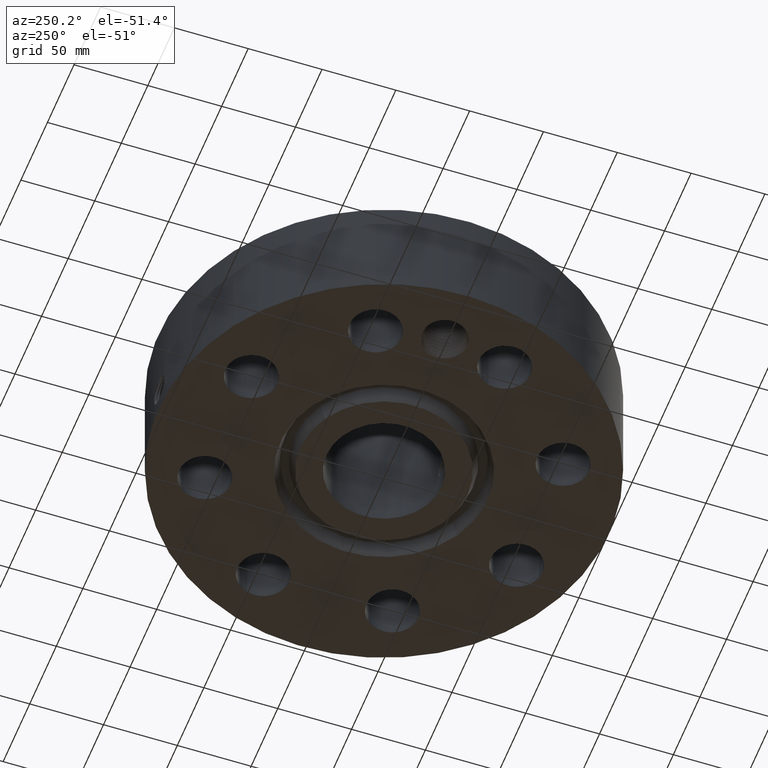
[diagram: clean part render]
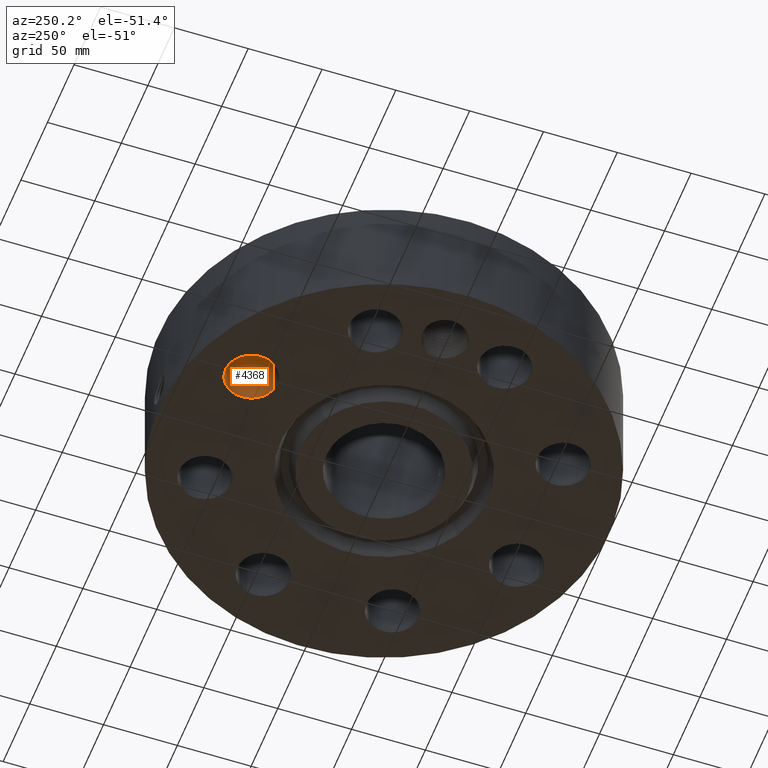
[diagram: same view with one face highlighted and labeled with its STEP entity id]
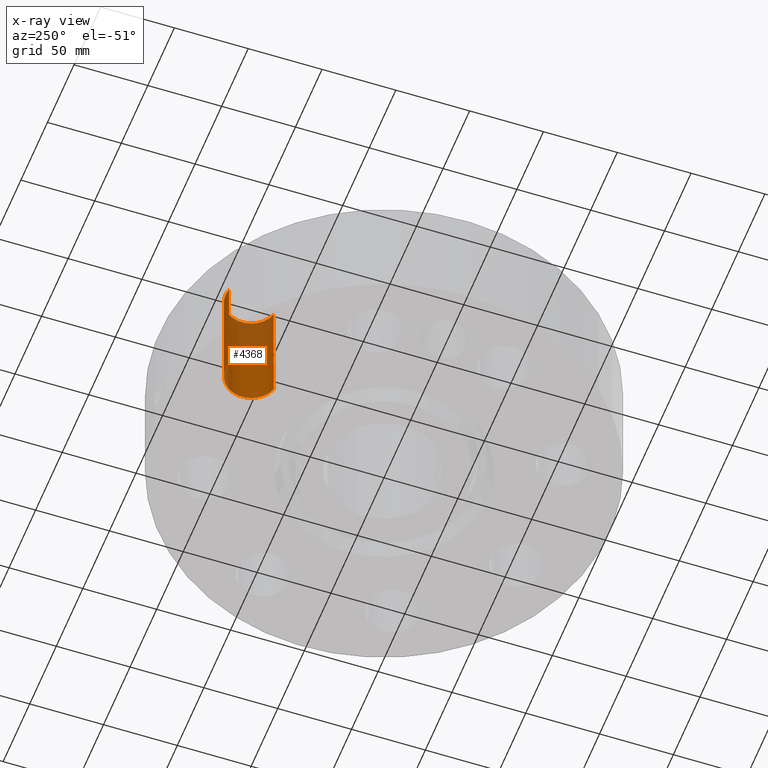
[diagram: x-ray of the same camera — body ghosted, the highlighted face saturated]
A machine part, auxiliary view. The second image highlights one B-rep face of the part: STEP entity #4368.
The next image is the same camera in x-ray: the body ghosted, the highlighted face saturated — about 39% of this face is hidden behind the body in this view.
In plain terms, the highlighted cylindrical surface (edge-blend (fillet) strip) has radius 17.526 mm, axis along (0, 0, -1).
Its self-contained STEP definition (entity closure, byte-faithful):
#3081=AXIS2_PLACEMENT_3D('Circle Axis2P3D',#3079,#3080,$) ;
#4329=AXIS2_PLACEMENT_3D('Cylinder Axis2P3D',#4326,#4327,#4328) ;
#4359=AXIS2_PLACEMENT_3D('Circle Axis2P3D',#4357,#4358,$) ;
#3079=CARTESIAN_POINT('Axis2P3D Location',(-1.72207544565,4.15745789632,2.99500000001)) ;
#3083=CARTESIAN_POINT('Vertex',(-1.91633772214,4.81954714101,2.99500000001)) ;
#3085=CARTESIAN_POINT('Vertex',(-1.52781316916,3.49536865163,2.99500000001)) ;
#4326=CARTESIAN_POINT('Axis2P3D Location',(-1.72207544565,4.15745789632,2.99106299214)) ;
#4331=CARTESIAN_POINT('Line Origine',(-1.52781316916,3.49536865163,1.49750000001)) ;
#4335=CARTESIAN_POINT('Vertex',(-1.52781316916,3.49536865163,0.)) ;
#4342=CARTESIAN_POINT('Vertex',(-1.91633772214,4.81954714101,0.)) ;
#4345=CARTESIAN_POINT('Line Origine',(-1.91633772214,4.81954714101,1.49750000001)) ;
#4357=CARTESIAN_POINT('Axis2P3D Location',(-1.72207544565,4.15745789632,0.)) ;
#3080=DIRECTION('Axis2P3D Direction',(0.,0.,-0.0393700787402)) ;
#4327=DIRECTION('Axis2P3D Direction',(0.,0.,-0.0393700787402)) ;
#4328=DIRECTION('Axis2P3D XDirection',(-0.0110842335096,0.0377775444876,0.)) ;
#4332=DIRECTION('Vector Direction',(0.,0.,-0.0393700787402)) ;
#4346=DIRECTION('Vector Direction',(0.,0.,-0.0393700787402)) ;
#4358=DIRECTION('Axis2P3D Direction',(0.,0.,-0.0393700787402)) ;
#4333=VECTOR('Line Direction',#4332,0.0393700787402) ;
#4347=VECTOR('Line Direction',#4346,0.0393700787402) ;
#4363=ORIENTED_EDGE('',*,*,#4349,.F.) ;
#4364=ORIENTED_EDGE('',*,*,#4361,.T.) ;
#4365=ORIENTED_EDGE('',*,*,#4337,.T.) ;
#4366=ORIENTED_EDGE('',*,*,#3087,.F.) ;
#4368=ADVANCED_FACE('PartBody',(#4367),#4330,.F.) ;
#3082=CIRCLE('generated circle',#3081,0.690000000003) ;
#4360=CIRCLE('generated circle',#4359,0.690000000003) ;
#4330=CYLINDRICAL_SURFACE('generated cylinder',#4329,0.690000000003) ;
#3087=EDGE_CURVE('',#3084,#3086,#3082,.T.) ;
#4337=EDGE_CURVE('',#4336,#3086,#4334,.F.) ;
#4349=EDGE_CURVE('',#4343,#3084,#4348,.F.) ;
#4361=EDGE_CURVE('',#4343,#4336,#4360,.T.) ;
#4362=EDGE_LOOP('',(#4363,#4364,#4365,#4366)) ;
#4367=FACE_OUTER_BOUND('',#4362,.T.) ;
#4334=LINE('Line',#4331,#4333) ;
#4348=LINE('Line',#4345,#4347) ;
#3084=VERTEX_POINT('',#3083) ;
#3086=VERTEX_POINT('',#3085) ;
#4336=VERTEX_POINT('',#4335) ;
#4343=VERTEX_POINT('',#4342) ;